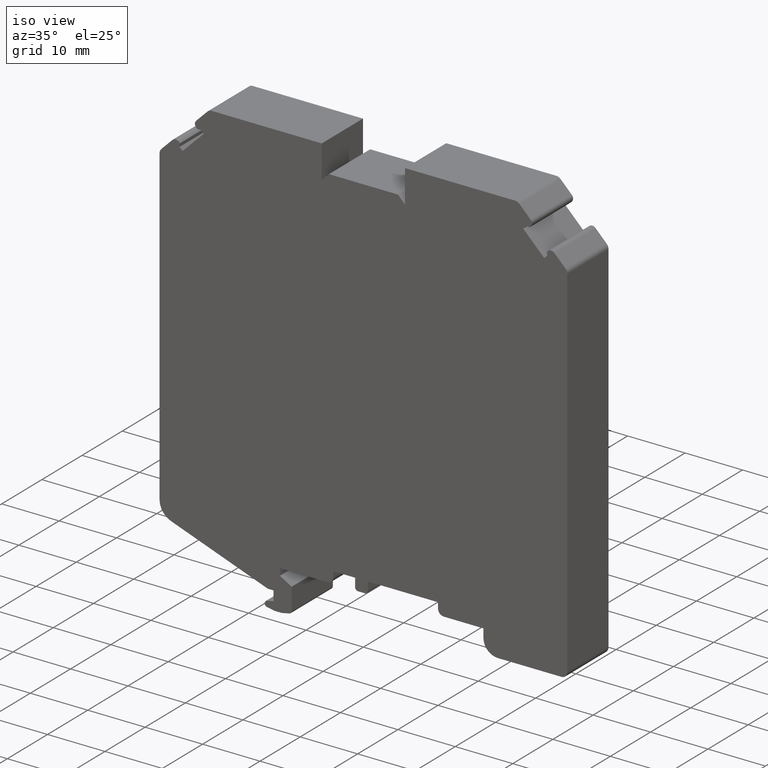
[diagram: clean part render]
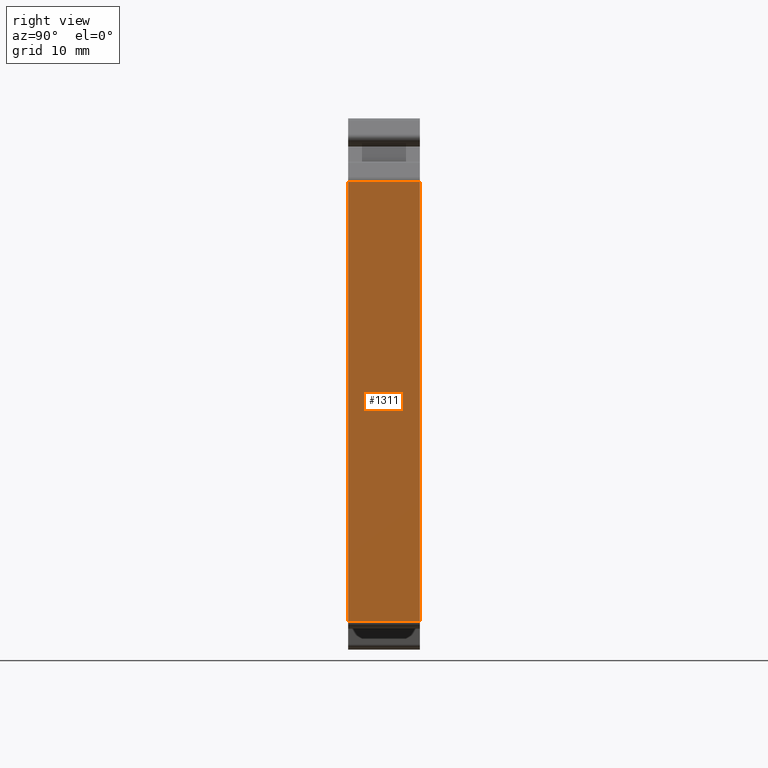
[diagram: tour spotlight — one face highlighted and labeled with its STEP entity id]
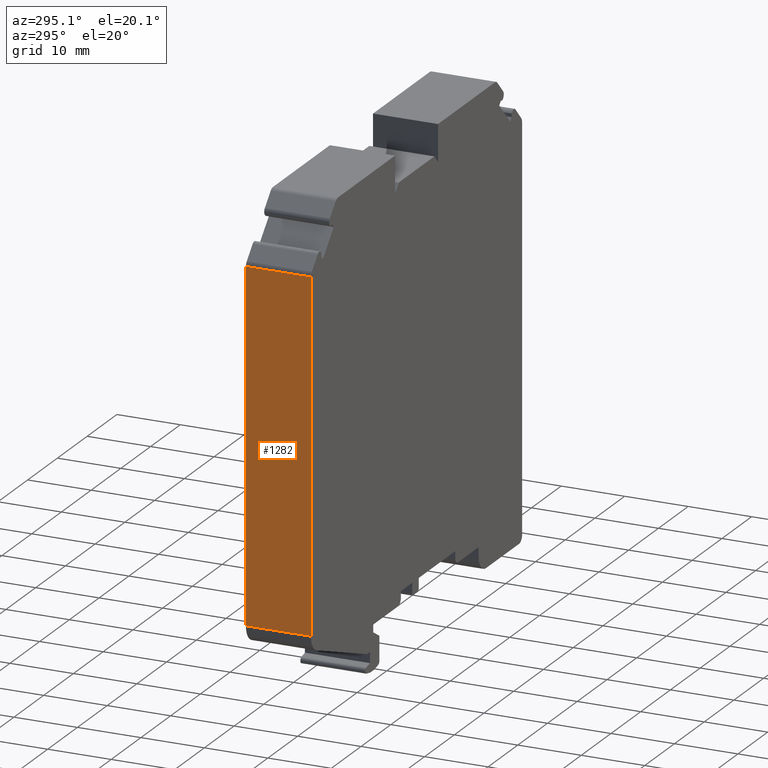
[diagram: tour spotlight — one face highlighted and labeled with its STEP entity id]
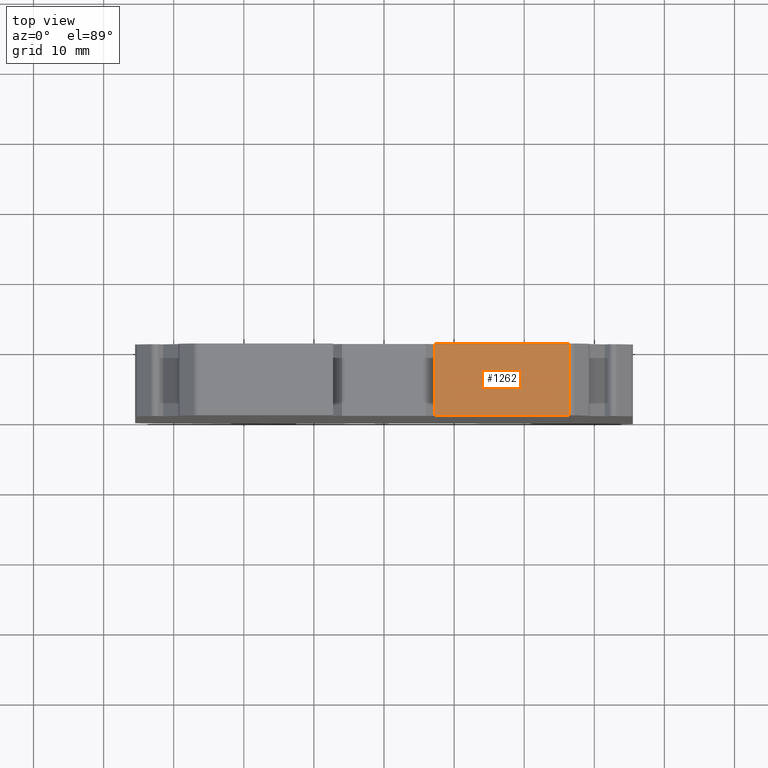
[diagram: tour spotlight — one face highlighted and labeled with its STEP entity id]
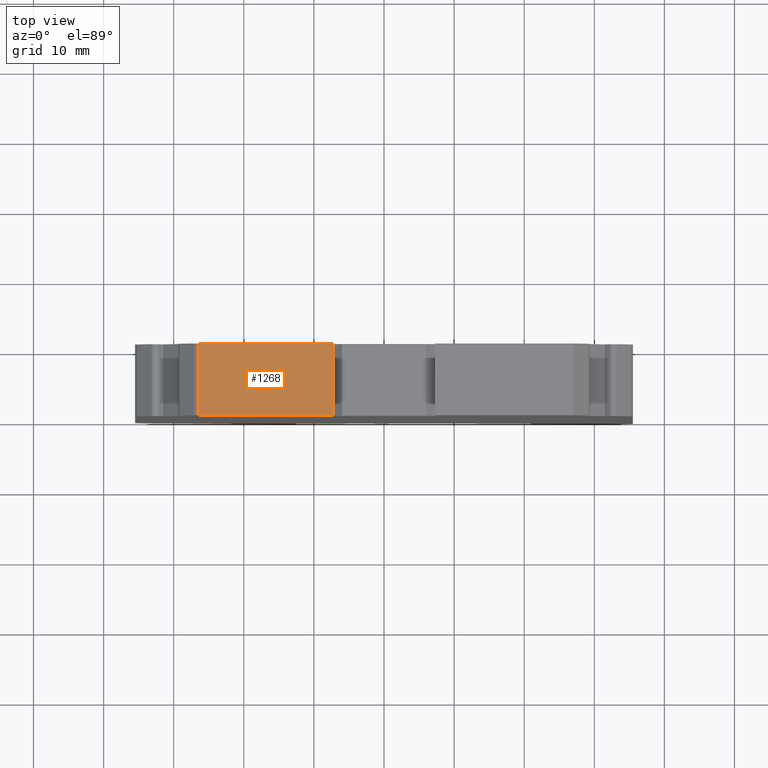
[diagram: tour spotlight — one face highlighted and labeled with its STEP entity id]
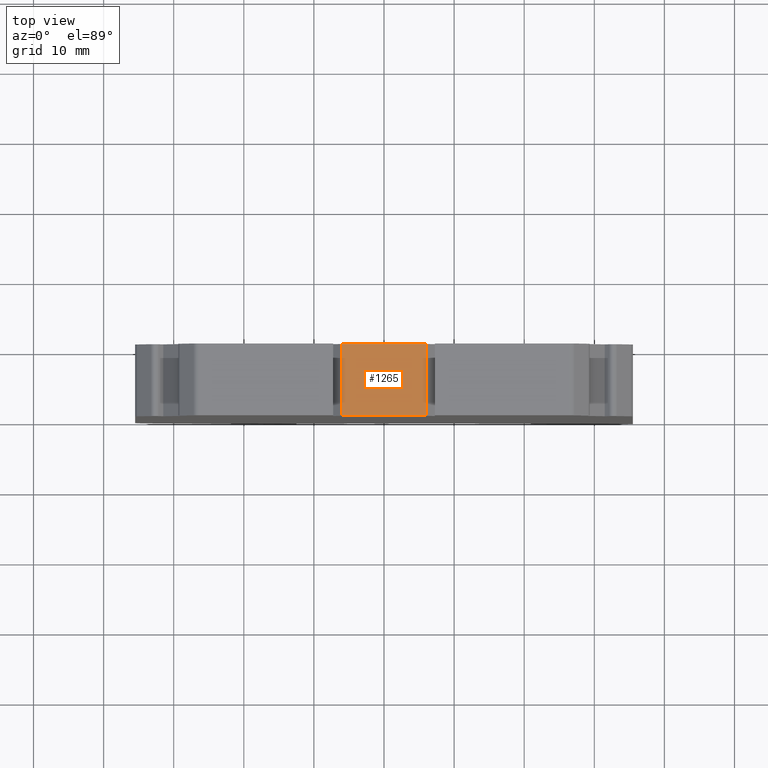
[diagram: tour spotlight — one face highlighted and labeled with its STEP entity id]
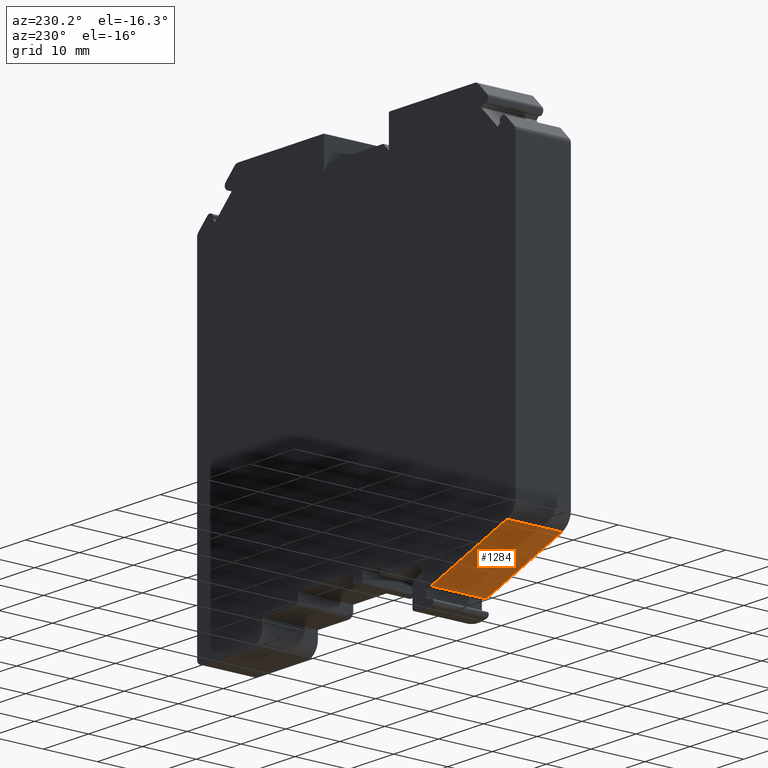
[diagram: tour spotlight — one face highlighted and labeled with its STEP entity id]
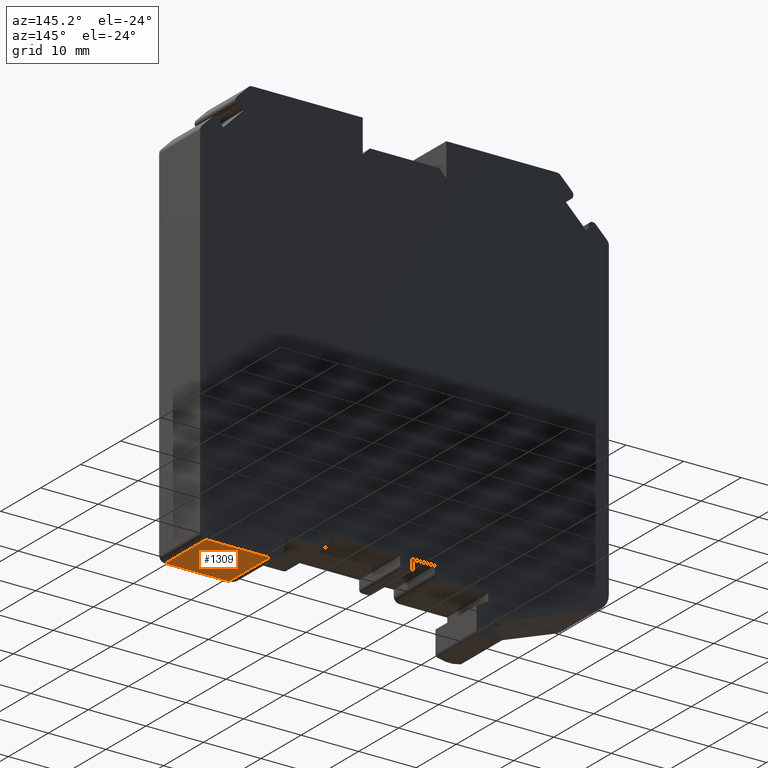
[diagram: tour spotlight — one face highlighted and labeled with its STEP entity id]
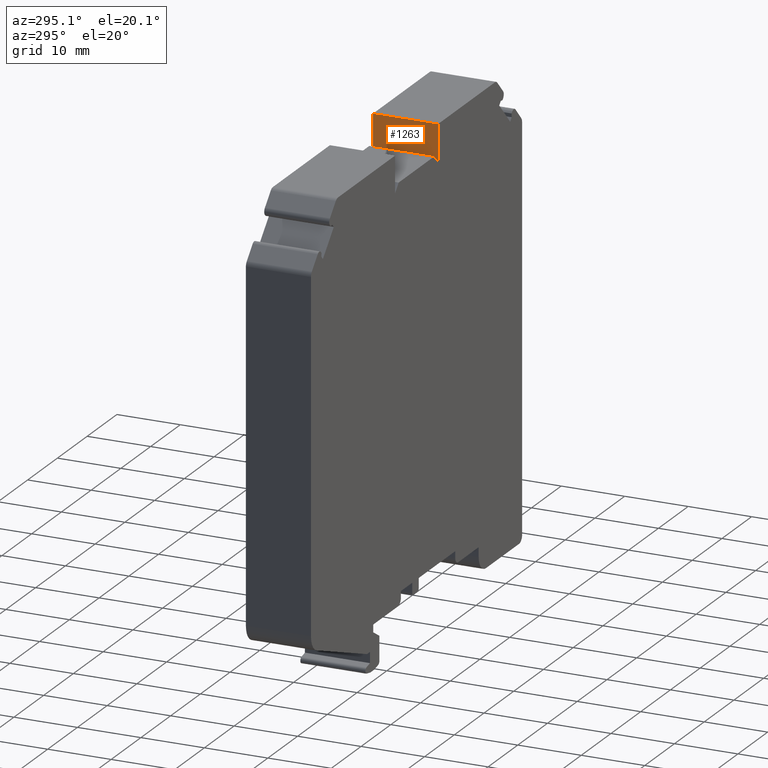
[diagram: tour spotlight — one face highlighted and labeled with its STEP entity id]
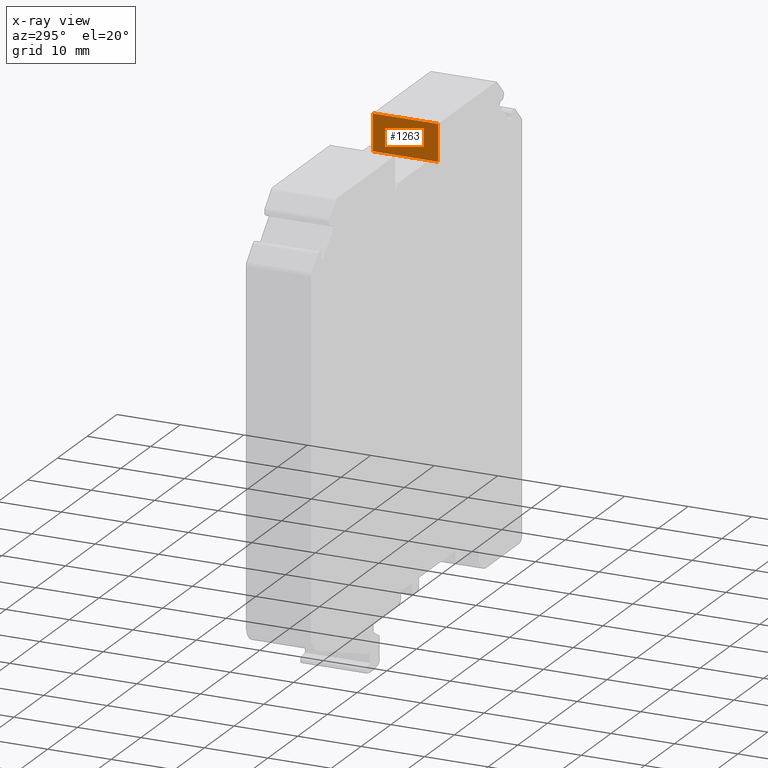
[diagram: x-ray of the same camera — body ghosted, this tour face saturated]
A machine part: a face-by-face anatomy tour. The part has 65 B-rep faces; the first image is the clean iso view, then the 8 largest visible faces are spotlighted one at a time (largest first), each with its STEP entity span.

Face 1 — right view, entity #1311. In plain terms, the highlighted planar face has unit normal (1, 0, -0).
Definition (entity closure, byte-faithful):
#318=ORIENTED_EDGE('',*,*,#636,.F.);
#319=ORIENTED_EDGE('',*,*,#635,.F.);
#320=ORIENTED_EDGE('',*,*,#637,.T.);
#321=ORIENTED_EDGE('',*,*,#638,.T.);
#635=EDGE_CURVE('',#764,#763,#916,.T.);
#636=EDGE_CURVE('',#763,#765,#917,.T.);
#637=EDGE_CURVE('',#764,#766,#918,.T.);
#638=EDGE_CURVE('',#766,#765,#919,.T.);
#763=VERTEX_POINT('',#2152);
#764=VERTEX_POINT('',#2154);
#765=VERTEX_POINT('',#2158);
#766=VERTEX_POINT('',#2160);
#916=LINE('',#2155,#1069);
#917=LINE('',#2157,#1070);
#918=LINE('',#2159,#1071);
#919=LINE('',#2161,#1072);
#1069=VECTOR('',#1770,1000.);
#1070=VECTOR('',#1773,1000.);
#1071=VECTOR('',#1774,1000.);
#1072=VECTOR('',#1775,1000.);
#1134=EDGE_LOOP('',(#318,#319,#320,#321));
#1199=FACE_BOUND('',#1134,.T.);
#1247=PLANE('',#1423);
#1311=ADVANCED_FACE('',(#1199),#1247,.T.);
#1423=AXIS2_PLACEMENT_3D('',#2156,#1771,#1772);
#1770=DIRECTION('',(0.,-1.,0.));
#1771=DIRECTION('',(1.,0.,-2.19923211144751E-14));
#1772=DIRECTION('',(-2.19923211144751E-14,0.,-1.));
#1773=DIRECTION('',(2.19923211144751E-14,0.,1.));
#1774=DIRECTION('',(0.,0.,1.));
#1775=DIRECTION('',(0.,-1.,0.));
#2152=CARTESIAN_POINT('',(35.5007187862958,0.,-33.89960801624));
#2154=CARTESIAN_POINT('',(35.5007187862958,10.25,-33.89960801624));
#2155=CARTESIAN_POINT('',(35.5007187862958,10.25,-33.89960801624));
#2156=CARTESIAN_POINT('',(35.5007187862967,10.25,28.8345326947704));
#2157=CARTESIAN_POINT('',(35.5007187862967,0.,28.8345326947704));
#2158=CARTESIAN_POINT('',(35.5007187862967,0.,28.8345326947704));
#2159=CARTESIAN_POINT('',(35.5007187862961,10.25,3.59338104810719));
#2160=CARTESIAN_POINT('',(35.5007187862967,10.25,28.8345326947704));
#2161=CARTESIAN_POINT('',(35.5007187862967,10.25,28.8345326947704));

Face 2 — auxiliary view, entity #1282. In plain terms, the highlighted planar face has unit normal (-1, 0, -0).
Definition (entity closure, byte-faithful):
#202=ORIENTED_EDGE('',*,*,#549,.F.);
#203=ORIENTED_EDGE('',*,*,#548,.F.);
#204=ORIENTED_EDGE('',*,*,#550,.T.);
#205=ORIENTED_EDGE('',*,*,#551,.T.);
#548=EDGE_CURVE('',#706,#705,#849,.T.);
#549=EDGE_CURVE('',#705,#707,#850,.T.);
#550=EDGE_CURVE('',#706,#708,#851,.T.);
#551=EDGE_CURVE('',#708,#707,#852,.T.);
#705=VERTEX_POINT('',#1978);
#706=VERTEX_POINT('',#1980);
#707=VERTEX_POINT('',#1984);
#708=VERTEX_POINT('',#1986);
#849=LINE('',#1981,#1002);
#850=LINE('',#1983,#1003);
#851=LINE('',#1985,#1004);
#852=LINE('',#1987,#1005);
#1002=VECTOR('',#1605,1000.);
#1003=VECTOR('',#1608,1000.);
#1004=VECTOR('',#1609,1000.);
#1005=VECTOR('',#1610,1000.);
#1105=EDGE_LOOP('',(#202,#203,#204,#205));
#1170=FACE_BOUND('',#1105,.T.);
#1228=PLANE('',#1374);
#1282=ADVANCED_FACE('',(#1170),#1228,.T.);
#1374=AXIS2_PLACEMENT_3D('',#1982,#1606,#1607);
#1605=DIRECTION('',(0.,-1.,0.));
#1606=DIRECTION('',(-1.,0.,-3.38163161786973E-15));
#1607=DIRECTION('',(-3.38163161786973E-15,0.,1.));
#1608=DIRECTION('',(3.38163161786973E-15,0.,-1.));
#1609=DIRECTION('',(4.08524090229804E-14,0.,-1.));
#1610=DIRECTION('',(0.,-1.,0.));
#1978=CARTESIAN_POINT('',(-35.5007187862967,0.,28.8345326947704));
#1980=CARTESIAN_POINT('',(-35.5007187862967,10.25,28.8345326947704));
#1981=CARTESIAN_POINT('',(-35.5007187862967,10.25,28.8345326947704));
#1982=CARTESIAN_POINT('',(-35.5007187862961,10.25,7.09338104810725));
#1983=CARTESIAN_POINT('',(-35.5007187862961,0.,7.09338104810725));
#1984=CARTESIAN_POINT('',(-35.500718786296,0.,-25.7376055903648));
#1985=CARTESIAN_POINT('',(-35.500718786297,10.25,28.8345326947704));
#1986=CARTESIAN_POINT('',(-35.500718786296,10.25,-25.7376055903648));
#1987=CARTESIAN_POINT('',(-35.500718786296,10.25,-25.7376055903648));

Face 3 — top view, entity #1262. In plain terms, the highlighted planar face has unit normal (-0, 0, 1).
Definition (entity closure, byte-faithful):
#122=ORIENTED_EDGE('',*,*,#489,.F.);
#123=ORIENTED_EDGE('',*,*,#488,.F.);
#124=ORIENTED_EDGE('',*,*,#490,.T.);
#125=ORIENTED_EDGE('',*,*,#491,.T.);
#488=EDGE_CURVE('',#666,#665,#797,.T.);
#489=EDGE_CURVE('',#665,#667,#798,.T.);
#490=EDGE_CURVE('',#666,#668,#799,.T.);
#491=EDGE_CURVE('',#668,#667,#800,.T.);
#665=VERTEX_POINT('',#1858);
#666=VERTEX_POINT('',#1860);
#667=VERTEX_POINT('',#1864);
#668=VERTEX_POINT('',#1866);
#797=LINE('',#1861,#950);
#798=LINE('',#1863,#951);
#799=LINE('',#1865,#952);
#800=LINE('',#1867,#953);
#950=VECTOR('',#1497,1000.);
#951=VECTOR('',#1500,1000.);
#952=VECTOR('',#1501,1000.);
#953=VECTOR('',#1502,1000.);
#1085=EDGE_LOOP('',(#122,#123,#124,#125));
#1150=FACE_BOUND('',#1085,.T.);
#1212=PLANE('',#1346);
#1262=ADVANCED_FACE('',(#1150),#1212,.T.);
#1346=AXIS2_PLACEMENT_3D('',#1862,#1498,#1499);
#1497=DIRECTION('',(0.,-1.,0.));
#1498=DIRECTION('',(-2.89334770882211E-15,0.,1.));
#1499=DIRECTION('',(1.,0.,2.89334770882211E-15));
#1500=DIRECTION('',(-1.,0.,-2.89334770882211E-15));
#1501=DIRECTION('',(-1.,0.,-2.89334770882211E-15));
#1502=DIRECTION('',(0.,-1.,0.));
#1858=CARTESIAN_POINT('',(26.4357864376268,0.,37.8994650434401));
#1860=CARTESIAN_POINT('',(26.4357864376268,10.25,37.8994650434401));
#1861=CARTESIAN_POINT('',(26.4357864376268,10.25,37.8994650434401));
#1862=CARTESIAN_POINT('',(7.24999999999998,10.25,37.8994650434401));
#1863=CARTESIAN_POINT('',(7.24999999999998,0.,37.8994650434401));
#1864=CARTESIAN_POINT('',(7.24999999999998,0.,37.8994650434401));
#1865=CARTESIAN_POINT('',(7.24999999999998,10.25,37.8994650434401));
#1866=CARTESIAN_POINT('',(7.24999999999998,10.25,37.8994650434401));
#1867=CARTESIAN_POINT('',(7.24999999999998,10.25,37.8994650434401));

Face 4 — top view, entity #1268. In plain terms, the highlighted planar face has unit normal (0, 0, 1).
Definition (entity closure, byte-faithful):
#146=ORIENTED_EDGE('',*,*,#507,.F.);
#147=ORIENTED_EDGE('',*,*,#506,.F.);
#148=ORIENTED_EDGE('',*,*,#508,.T.);
#149=ORIENTED_EDGE('',*,*,#509,.T.);
#506=EDGE_CURVE('',#678,#677,#815,.T.);
#507=EDGE_CURVE('',#677,#679,#816,.T.);
#508=EDGE_CURVE('',#678,#680,#817,.T.);
#509=EDGE_CURVE('',#680,#679,#818,.T.);
#677=VERTEX_POINT('',#1894);
#678=VERTEX_POINT('',#1896);
#679=VERTEX_POINT('',#1900);
#680=VERTEX_POINT('',#1902);
#815=LINE('',#1897,#968);
#816=LINE('',#1899,#969);
#817=LINE('',#1901,#970);
#818=LINE('',#1903,#971);
#968=VECTOR('',#1527,1000.);
#969=VECTOR('',#1530,1000.);
#970=VECTOR('',#1531,1000.);
#971=VECTOR('',#1532,1000.);
#1091=EDGE_LOOP('',(#146,#147,#148,#149));
#1156=FACE_BOUND('',#1091,.T.);
#1218=PLANE('',#1352);
#1268=ADVANCED_FACE('',(#1156),#1218,.T.);
#1352=AXIS2_PLACEMENT_3D('',#1898,#1528,#1529);
#1527=DIRECTION('',(0.,-1.,0.));
#1528=DIRECTION('',(0.,0.,1.));
#1529=DIRECTION('',(1.,0.,0.));
#1530=DIRECTION('',(-1.,0.,0.));
#1531=DIRECTION('',(-1.,0.,0.));
#1532=DIRECTION('',(0.,-1.,0.));
#1894=CARTESIAN_POINT('',(-7.24999999999998,0.,37.8994650434401));
#1896=CARTESIAN_POINT('',(-7.24999999999998,10.25,37.8994650434401));
#1897=CARTESIAN_POINT('',(-7.24999999999998,10.25,37.8994650434401));
#1898=CARTESIAN_POINT('',(-7.24999999999998,10.25,37.8994650434401));
#1899=CARTESIAN_POINT('',(-7.24999999999998,0.,37.8994650434401));
#1900=CARTESIAN_POINT('',(-26.4357864376268,0.,37.8994650434401));
#1901=CARTESIAN_POINT('',(-7.24999999999998,10.25,37.8994650434401));
#1902=CARTESIAN_POINT('',(-26.4357864376268,10.25,37.8994650434401));
#1903=CARTESIAN_POINT('',(-26.4357864376268,10.25,37.8994650434401));

Face 5 — top view, entity #1265. In plain terms, the highlighted planar face has unit normal (-0, 0, 1).
Definition (entity closure, byte-faithful):
#134=ORIENTED_EDGE('',*,*,#498,.F.);
#135=ORIENTED_EDGE('',*,*,#497,.F.);
#136=ORIENTED_EDGE('',*,*,#499,.T.);
#137=ORIENTED_EDGE('',*,*,#500,.T.);
#497=EDGE_CURVE('',#672,#671,#806,.T.);
#498=EDGE_CURVE('',#671,#673,#807,.T.);
#499=EDGE_CURVE('',#672,#674,#808,.T.);
#500=EDGE_CURVE('',#674,#673,#809,.T.);
#671=VERTEX_POINT('',#1876);
#672=VERTEX_POINT('',#1878);
#673=VERTEX_POINT('',#1882);
#674=VERTEX_POINT('',#1884);
#806=LINE('',#1879,#959);
#807=LINE('',#1881,#960);
#808=LINE('',#1883,#961);
#809=LINE('',#1885,#962);
#959=VECTOR('',#1512,1000.);
#960=VECTOR('',#1515,1000.);
#961=VECTOR('',#1516,1000.);
#962=VECTOR('',#1517,1000.);
#1088=EDGE_LOOP('',(#134,#135,#136,#137));
#1153=FACE_BOUND('',#1088,.T.);
#1215=PLANE('',#1349);
#1265=ADVANCED_FACE('',(#1153),#1215,.T.);
#1349=AXIS2_PLACEMENT_3D('',#1880,#1513,#1514);
#1512=DIRECTION('',(0.,-1.,0.));
#1513=DIRECTION('',(-9.25185853854296E-15,0.,1.));
#1514=DIRECTION('',(1.,0.,9.25185853854296E-15));
#1515=DIRECTION('',(-1.,0.,-9.25185853854296E-15));
#1516=DIRECTION('',(-1.,0.,-9.25185853854296E-15));
#1517=DIRECTION('',(0.,-1.,0.));
#1876=CARTESIAN_POINT('',(5.99999999999978,0.,33.3994650434401));
#1878=CARTESIAN_POINT('',(5.99999999999978,10.25,33.3994650434401));
#1879=CARTESIAN_POINT('',(5.99999999999978,10.25,33.3994650434401));
#1880=CARTESIAN_POINT('',(5.99999999999978,10.25,33.3994650434401));
#1881=CARTESIAN_POINT('',(5.99999999999978,0.,33.3994650434401));
#1882=CARTESIAN_POINT('',(-6.00000000000023,0.,33.39946504344));
#1883=CARTESIAN_POINT('',(5.99999999999978,10.25,33.3994650434401));
#1884=CARTESIAN_POINT('',(-6.00000000000023,10.25,33.39946504344));
#1885=CARTESIAN_POINT('',(-6.00000000000023,10.25,33.39946504344));

Face 6 — auxiliary view, entity #1284. In plain terms, the highlighted planar face has unit normal (-0.342, 0, -0.9397).
Definition (entity closure, byte-faithful):
#210=ORIENTED_EDGE('',*,*,#555,.F.);
#211=ORIENTED_EDGE('',*,*,#554,.F.);
#212=ORIENTED_EDGE('',*,*,#556,.T.);
#213=ORIENTED_EDGE('',*,*,#557,.T.);
#554=EDGE_CURVE('',#710,#709,#853,.T.);
#555=EDGE_CURVE('',#709,#711,#854,.T.);
#556=EDGE_CURVE('',#710,#712,#855,.T.);
#557=EDGE_CURVE('',#712,#711,#856,.T.);
#709=VERTEX_POINT('',#1990);
#710=VERTEX_POINT('',#1992);
#711=VERTEX_POINT('',#1996);
#712=VERTEX_POINT('',#1998);
#853=LINE('',#1993,#1006);
#854=LINE('',#1995,#1007);
#855=LINE('',#1997,#1008);
#856=LINE('',#1999,#1009);
#1006=VECTOR('',#1617,1000.);
#1007=VECTOR('',#1620,1000.);
#1008=VECTOR('',#1621,1000.);
#1009=VECTOR('',#1622,1000.);
#1107=EDGE_LOOP('',(#210,#211,#212,#213));
#1172=FACE_BOUND('',#1107,.T.);
#1229=PLANE('',#1378);
#1284=ADVANCED_FACE('',(#1172),#1229,.T.);
#1378=AXIS2_PLACEMENT_3D('',#1994,#1618,#1619);
#1617=DIRECTION('',(0.,-1.,0.));
#1618=DIRECTION('',(-0.342020143325659,0.,-0.939692620785912));
#1619=DIRECTION('',(-0.939692620785912,0.,0.342020143325659));
#1620=DIRECTION('',(0.939692620785912,0.,-0.342020143325659));
#1621=DIRECTION('',(0.939692620785912,0.,-0.342020143325659));
#1622=DIRECTION('',(0.,-1.,0.));
#1990=CARTESIAN_POINT('',(-33.526779216273,0.,-28.5566834527225));
#1992=CARTESIAN_POINT('',(-33.526779216273,10.25,-28.5566834527225));
#1993=CARTESIAN_POINT('',(-33.526779216273,10.25,-28.5566834527225));
#1994=CARTESIAN_POINT('',(-16.6492065009605,10.25,-34.6996175477598));
#1995=CARTESIAN_POINT('',(-16.6492065009605,0.,-34.6996175477598));
#1996=CARTESIAN_POINT('',(-16.6492065009605,0.,-34.6996175477598));
#1997=CARTESIAN_POINT('',(-16.6492065009605,10.25,-34.6996175477598));
#1998=CARTESIAN_POINT('',(-16.6492065009605,10.25,-34.6996175477598));
#1999=CARTESIAN_POINT('',(-16.6492065009605,10.25,-34.6996175477598));

Face 7 — auxiliary view, entity #1309. In plain terms, the highlighted planar face has unit normal (-0, 0, -1).
Definition (entity closure, byte-faithful):
#310=ORIENTED_EDGE('',*,*,#630,.F.);
#311=ORIENTED_EDGE('',*,*,#629,.F.);
#312=ORIENTED_EDGE('',*,*,#631,.T.);
#313=ORIENTED_EDGE('',*,*,#632,.T.);
#629=EDGE_CURVE('',#760,#759,#912,.T.);
#630=EDGE_CURVE('',#759,#761,#913,.T.);
#631=EDGE_CURVE('',#760,#762,#914,.T.);
#632=EDGE_CURVE('',#762,#761,#915,.T.);
#759=VERTEX_POINT('',#2140);
#760=VERTEX_POINT('',#2142);
#761=VERTEX_POINT('',#2146);
#762=VERTEX_POINT('',#2148);
#912=LINE('',#2143,#1065);
#913=LINE('',#2145,#1066);
#914=LINE('',#2147,#1067);
#915=LINE('',#2149,#1068);
#1065=VECTOR('',#1758,1000.);
#1066=VECTOR('',#1761,1000.);
#1067=VECTOR('',#1762,1000.);
#1068=VECTOR('',#1763,1000.);
#1132=EDGE_LOOP('',(#310,#311,#312,#313));
#1197=FACE_BOUND('',#1132,.T.);
#1246=PLANE('',#1419);
#1309=ADVANCED_FACE('',(#1197),#1246,.T.);
#1419=AXIS2_PLACEMENT_3D('',#2144,#1759,#1760);
#1758=DIRECTION('',(0.,-1.,0.));
#1759=DIRECTION('',(-5.00017847146539E-15,0.,-1.));
#1760=DIRECTION('',(-1.,0.,5.00017847146539E-15));
#1761=DIRECTION('',(1.,0.,-5.00017847146539E-15));
#1762=DIRECTION('',(1.,0.,-5.00017847146539E-15));
#1763=DIRECTION('',(0.,-1.,0.));
#2140=CARTESIAN_POINT('',(23.3988848121598,0.,-34.8996080162398));
#2142=CARTESIAN_POINT('',(23.3988848121598,10.25,-34.8996080162398));
#2143=CARTESIAN_POINT('',(23.3988848121598,10.25,-34.8996080162398));
#2144=CARTESIAN_POINT('',(23.3988848121598,10.25,-34.8996080162399));
#2145=CARTESIAN_POINT('',(23.3988848121598,0.,-34.8996080162399));
#2146=CARTESIAN_POINT('',(34.5007187862958,0.,-34.89960801624));
#2147=CARTESIAN_POINT('',(23.3988848121598,10.25,-34.8996080162399));
#2148=CARTESIAN_POINT('',(34.5007187862958,10.25,-34.89960801624));
#2149=CARTESIAN_POINT('',(34.5007187862958,10.25,-34.89960801624));

Face 8 — auxiliary view, entity #1263. An x-ray twin of the same camera follows (body ghosted, this face saturated) — the face is partly hidden behind the body. In plain terms, the highlighted planar face has unit normal (-1, 0, 0).
Definition (entity closure, byte-faithful):
#126=ORIENTED_EDGE('',*,*,#492,.F.);
#127=ORIENTED_EDGE('',*,*,#491,.F.);
#128=ORIENTED_EDGE('',*,*,#493,.T.);
#129=ORIENTED_EDGE('',*,*,#494,.T.);
#491=EDGE_CURVE('',#668,#667,#800,.T.);
#492=EDGE_CURVE('',#667,#669,#801,.T.);
#493=EDGE_CURVE('',#668,#670,#802,.T.);
#494=EDGE_CURVE('',#670,#669,#803,.T.);
#667=VERTEX_POINT('',#1864);
#668=VERTEX_POINT('',#1866);
#669=VERTEX_POINT('',#1870);
#670=VERTEX_POINT('',#1872);
#800=LINE('',#1867,#953);
#801=LINE('',#1869,#954);
#802=LINE('',#1871,#955);
#803=LINE('',#1873,#956);
#953=VECTOR('',#1502,1000.);
#954=VECTOR('',#1505,1000.);
#955=VECTOR('',#1506,1000.);
#956=VECTOR('',#1507,1000.);
#1086=EDGE_LOOP('',(#126,#127,#128,#129));
#1151=FACE_BOUND('',#1086,.T.);
#1213=PLANE('',#1347);
#1263=ADVANCED_FACE('',(#1151),#1213,.T.);
#1347=AXIS2_PLACEMENT_3D('',#1868,#1503,#1504);
#1502=DIRECTION('',(0.,-1.,0.));
#1503=DIRECTION('',(-1.,0.,0.));
#1504=DIRECTION('',(0.,0.,1.));
#1505=DIRECTION('',(0.,0.,-1.));
#1506=DIRECTION('',(0.,0.,-1.));
#1507=DIRECTION('',(0.,-1.,0.));
#1864=CARTESIAN_POINT('',(7.24999999999998,0.,37.8994650434401));
#1866=CARTESIAN_POINT('',(7.24999999999998,10.25,37.8994650434401));
#1867=CARTESIAN_POINT('',(7.24999999999998,10.25,37.8994650434401));
#1868=CARTESIAN_POINT('',(7.24999999999998,10.25,37.8994650434401));
#1869=CARTESIAN_POINT('',(7.24999999999998,0.,37.8994650434401));
#1870=CARTESIAN_POINT('',(7.24999999999998,0.,32.1494650434398));
#1871=CARTESIAN_POINT('',(7.24999999999998,10.25,37.8994650434401));
#1872=CARTESIAN_POINT('',(7.24999999999998,10.25,32.1494650434398));
#1873=CARTESIAN_POINT('',(7.24999999999998,10.25,32.1494650434398));